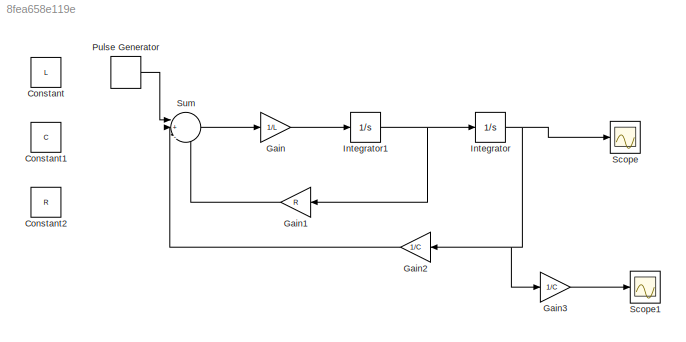
MODEL slx_8fea658e119e
KIND model
CONFIG AbsTol = auto
CONFIG EnableMultiTasking = off
CONFIG FixedStep = auto
CONFIG MaxStep = auto
CONFIG MinStep = auto
CONFIG RelTol = 1e-3
CONFIG SampleTimeConstraint = Unconstrained
CONFIG SolverName = VariableStepAuto
CONFIG StartTime = 0.0
CONFIG StopTime = 0.005
WORKSPACE source: mxarray member
WORKSPACE C = 1e-07
WORKSPACE L = 0.006
WORKSPACE R = 100
BLOCK [Constant] Constant
  Value = L
BLOCK [Constant] Constant1
  Value = C
BLOCK [Constant] Constant2
  Value = R
BLOCK [Gain] Gain
  Gain = 1/L
BLOCK [Gain] Gain1
  Gain = R
  NameLocation = top
BLOCK [Gain] Gain2
  Gain = 1/C
  NameLocation = top
BLOCK [Gain] Gain3
  Gain = 1/C
BLOCK [Integrator] Integrator
BLOCK [Integrator] Integrator1
BLOCK [DiscretePulseGenerator] Pulse Generator
  Amplitude = 5
  Period = 1/500
  PulseType = Time based
  PulseWidth = 50
BLOCK [Scope] Scope
  Floating = off
  NumInputPorts = 1
  ScopeSpecificationString = Simulink.scopes.TimeScopeBlockCfg('CurrentConfiguration', extmgr.ConfigurationSet(extmgr.Configuration('Core','General UI',true),extmgr.Configuration('Core','Source UI',true),extmgr.Configuration('Sources','WiredSimulink',true),extmgr.Configuration('Visuals','Time Domain',true,'SerializedDisplays',{struct('MinYLimReal','-0.00000007','MaxYLimReal','0.00000017','YLabelReal','','MinYLimMag','0.000000...<+1383ch>
BLOCK [Scope] Scope1
  Floating = off
  NumInputPorts = 1
  ScopeSpecificationString = Simulink.scopes.TimeScopeBlockCfg('CurrentConfiguration', extmgr.ConfigurationSet(extmgr.Configuration('Core','General UI',true),extmgr.Configuration('Core','Source UI',true),extmgr.Configuration('Sources','WiredSimulink',true,'DataLoggingVariableName','ScopeData1'),extmgr.Configuration('Visuals','Time Domain',true,'SerializedDisplays',{struct('MinYLimReal','-3.64838','MaxYLimReal','8.62739','YLab...<+1419ch>
BLOCK [Sum] Sum
  Inputs = |+|--
LINE Gain1:1 -> Sum:3
LINE Gain2:1 -> Sum:2
LINE Gain3:1 -> Scope1:1
LINE Gain:1 -> Integrator1:1
NET Integrator1:1 -> Gain1:1, Integrator:1
NET Integrator:1 -> Gain2:1, Gain3:1, Scope:1
LINE Pulse Generator:1 -> Sum:1
LINE Sum:1 -> Gain:1
note: NET lines group one-source signal fan-out (src -> all destinations, sorted); 1:1 wires keep LINE
